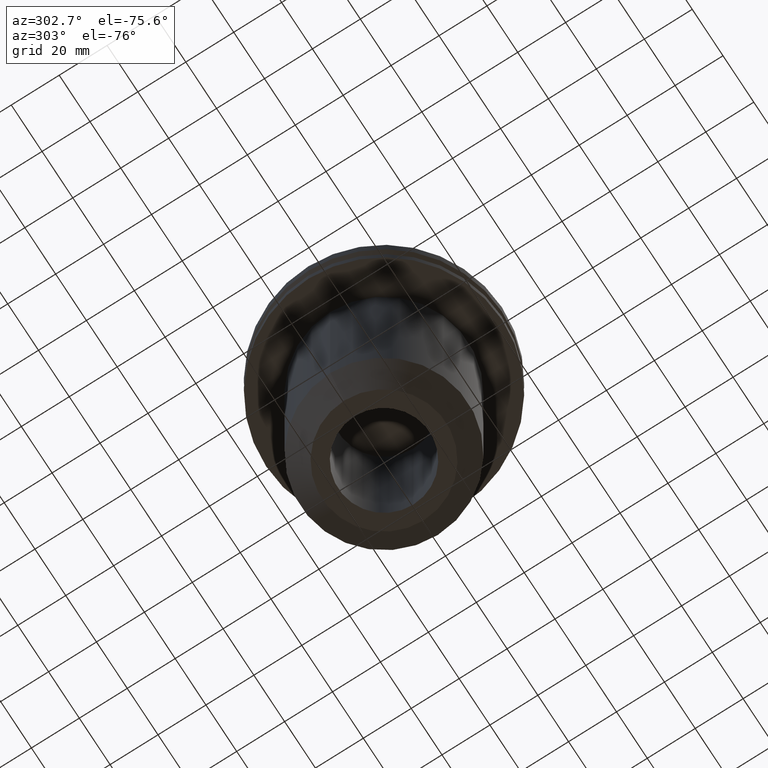
[diagram: clean part render]
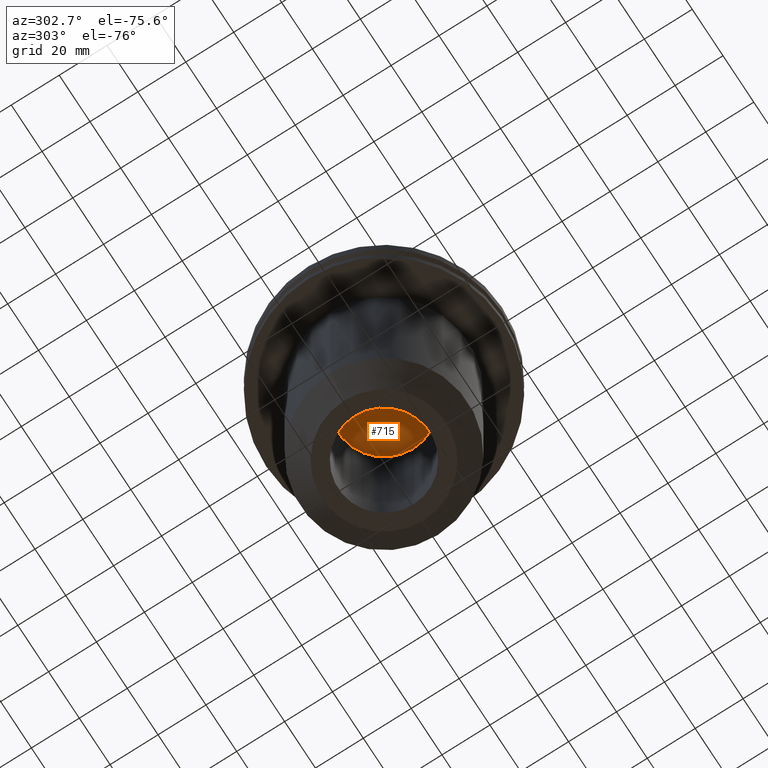
[diagram: same view with one face highlighted and labeled with its STEP entity id]
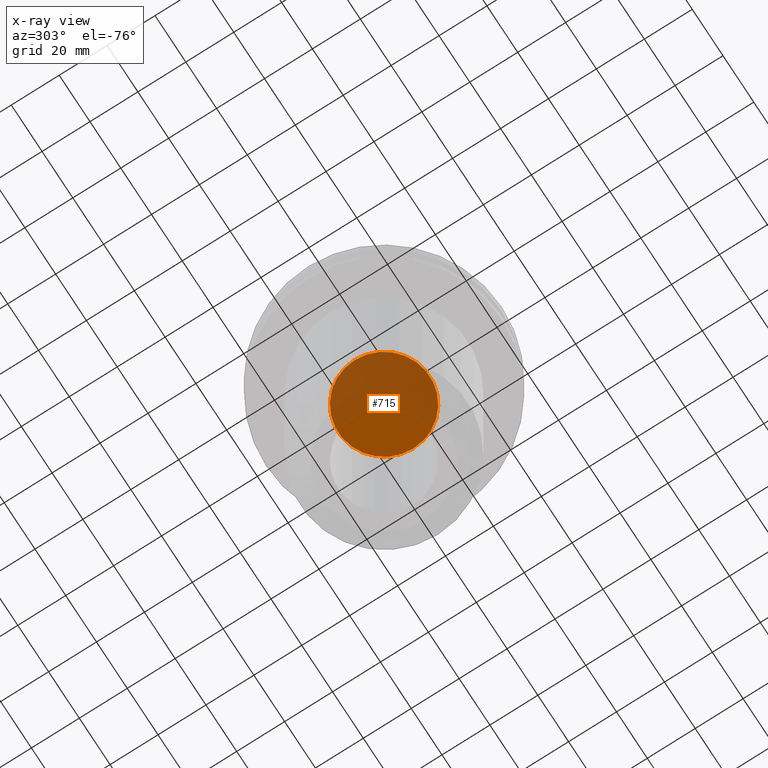
[diagram: x-ray of the same camera — body ghosted, the highlighted face saturated]
A machine part, auxiliary view. The second image highlights one B-rep face of the part: STEP entity #715.
The next image is the same camera in x-ray: the body ghosted, the highlighted face saturated — about 65% of this face is hidden behind the body in this view.
In plain terms, the highlighted planar face has unit normal (0, -0, 1).
Its self-contained STEP definition (entity closure, byte-faithful):
#4 = DIRECTION ( 'NONE',  ( 1.000000000000000000, 0.000000000000000000, 0.000000000000000000 ) ) ;
#11 = AXIS2_PLACEMENT_3D ( 'NONE', #187, #664, #620 ) ;
#49 = ORIENTED_EDGE ( 'NONE', *, *, #306, .F. ) ;
#107 = DIRECTION ( 'NONE',  ( 0.000000000000000000, -0.000000000000000000, 1.000000000000000000 ) ) ;
#134 = VERTEX_POINT ( 'NONE', #694 ) ;
#162 = FACE_OUTER_BOUND ( 'NONE', #473, .T. ) ;
#176 = DIRECTION ( 'NONE',  ( 1.000000000000000000, 0.000000000000000000, 0.000000000000000000 ) ) ;
#187 = CARTESIAN_POINT ( 'NONE',  ( 0.000000000000000000, 0.000000000000000000, -35.04999999999999716 ) ) ;
#246 = AXIS2_PLACEMENT_3D ( 'NONE', #476, #407, #176 ) ;
#306 = EDGE_CURVE ( 'NONE', #449, #134, #576, .T. ) ;
#407 = DIRECTION ( 'NONE',  ( -0.000000000000000000, -0.000000000000000000, 1.000000000000000000 ) ) ;
#439 = CARTESIAN_POINT ( 'NONE',  ( -19.04999999999999005, 2.332952152375706466E-15, -35.04999999999999716 ) ) ;
#448 = EDGE_CURVE ( 'NONE', #134, #449, #482, .T. ) ;
#449 = VERTEX_POINT ( 'NONE', #439 ) ;
#473 = EDGE_LOOP ( 'NONE', ( #547, #49 ) ) ;
#476 = CARTESIAN_POINT ( 'NONE',  ( 0.000000000000000000, 0.000000000000000000, -35.04999999999999716 ) ) ;
#482 = CIRCLE ( 'NONE', #11, 19.04999999999999005 ) ;
#547 = ORIENTED_EDGE ( 'NONE', *, *, #448, .F. ) ;
#576 = CIRCLE ( 'NONE', #246, 19.04999999999999005 ) ;
#620 = DIRECTION ( 'NONE',  ( 1.000000000000000000, 0.000000000000000000, 0.000000000000000000 ) ) ;
#664 = DIRECTION ( 'NONE',  ( -0.000000000000000000, -0.000000000000000000, 1.000000000000000000 ) ) ;
#671 = AXIS2_PLACEMENT_3D ( 'NONE', #714, #107, #4 ) ;
#694 = CARTESIAN_POINT ( 'NONE',  ( 19.04999999999999005, 0.000000000000000000, -35.04999999999999716 ) ) ;
#699 = PLANE ( 'NONE',  #671 ) ;
#714 = CARTESIAN_POINT ( 'NONE',  ( 0.000000000000000000, 34.92499999999999716, -35.04999999999999716 ) ) ;
#715 = ADVANCED_FACE ( 'NONE', ( #162 ), #699, .F. ) ;